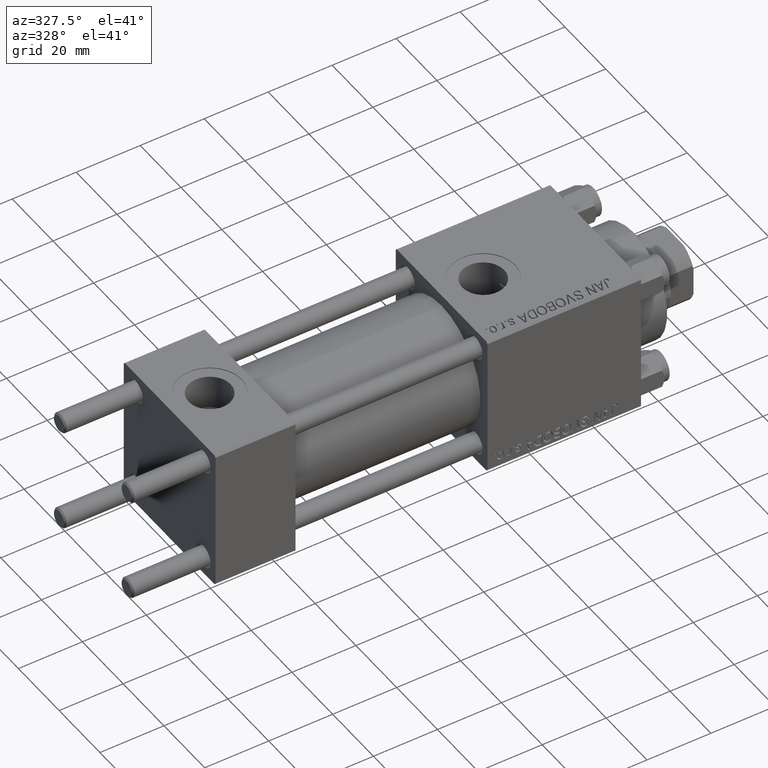
[diagram: clean part render]
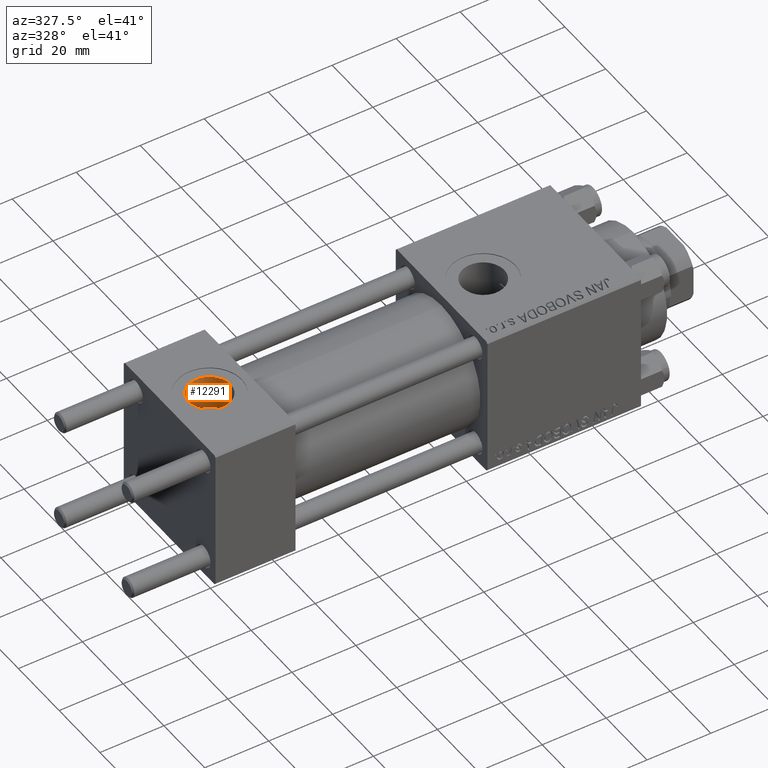
[diagram: same view with one face highlighted and labeled with its STEP entity id]
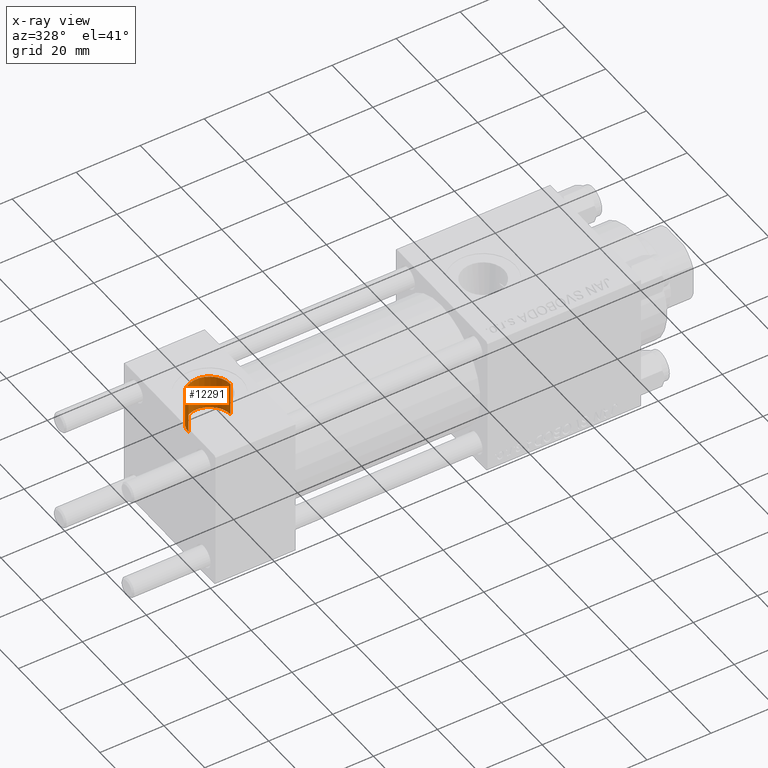
[diagram: x-ray of the same camera — body ghosted, the highlighted face saturated]
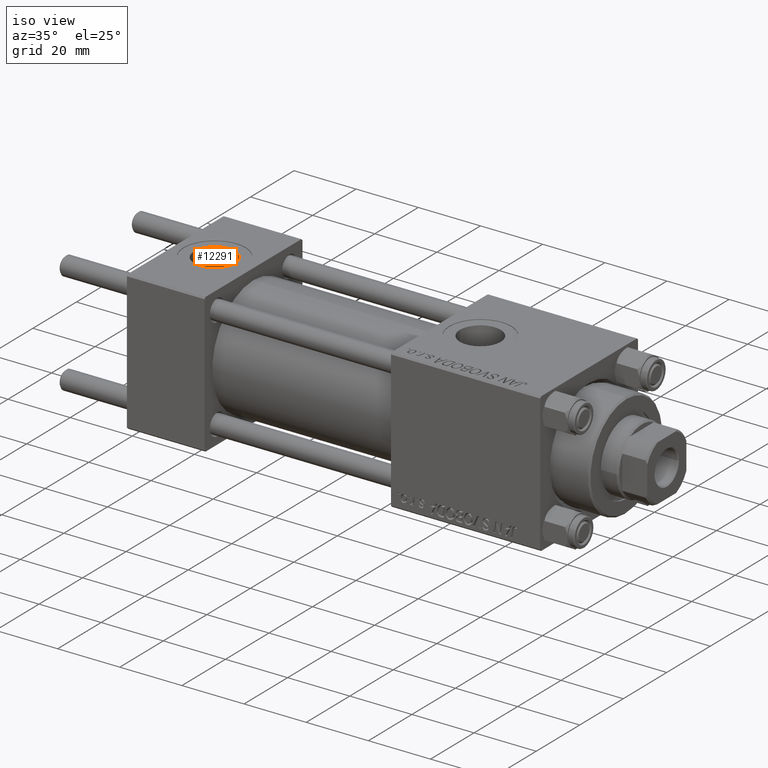
[diagram: same view with one face highlighted and labeled with its STEP entity id]
A machine part, auxiliary view. The second image highlights one B-rep face of the part: STEP entity #12291.
The next image is the same camera in x-ray: the body ghosted, the highlighted face saturated — about 0% of this face is hidden behind the body in this view.
A second angle (iso view) of the same face is appended — the face is thin or edge-on in the first view.
In plain terms, the highlighted cylindrical surface (edge-blend (fillet) strip) has radius 6.58 mm, axis along (0, 0, 1).
Its self-contained STEP definition (entity closure, byte-faithful):
#419 = LINE ( 'NONE', #15544, #33081 ) ;
#1690 = AXIS2_PLACEMENT_3D ( 'NONE', #33858, #49278, #30068 ) ;
#3498 = DIRECTION ( 'NONE',  ( 1.000000000000000000, 0.000000000000000000, 0.000000000000000000 ) ) ;
#5809 = CYLINDRICAL_SURFACE ( 'NONE', #16066, 6.579999999999999183 ) ;
#6995 = DIRECTION ( 'NONE',  ( -0.000000000000000000, -0.000000000000000000, 1.000000000000000000 ) ) ;
#8370 = EDGE_CURVE ( 'NONE', #28342, #35337, #16716, .T. ) ;
#8472 = ORIENTED_EDGE ( 'NONE', *, *, #22422, .T. ) ;
#10282 = LINE ( 'NONE', #26127, #48581 ) ;
#10394 = ORIENTED_EDGE ( 'NONE', *, *, #8370, .T. ) ;
#10612 = CARTESIAN_POINT ( 'NONE',  ( 19.07999999999999829, -1.734723475976807094E-15, 11.66598726114649409 ) ) ;
#12291 = ADVANCED_FACE ( 'NONE', ( #48433 ), #5809, .F. ) ;
#15544 = CARTESIAN_POINT ( 'NONE',  ( 5.920000000000002593, -9.289058821378490386E-16, 11.69999999999999929 ) ) ;
#16066 = AXIS2_PLACEMENT_3D ( 'NONE', #21177, #36577, #33025 ) ;
#16716 = CIRCLE ( 'NONE', #36051, 6.579999999999999183 ) ;
#17188 = EDGE_CURVE ( 'NONE', #41045, #35337, #419, .T. ) ;
#19129 = DIRECTION ( 'NONE',  ( 0.000000000000000000, 0.000000000000000000, 1.000000000000000000 ) ) ;
#19413 = CIRCLE ( 'NONE', #1690, 6.579999999999999183 ) ;
#19794 = CARTESIAN_POINT ( 'NONE',  ( 19.07999999999999829, -1.734723475976807094E-15, 22.30000000000000071 ) ) ;
#21177 = CARTESIAN_POINT ( 'NONE',  ( 12.50000000000000000, -1.734723475976807094E-15, 11.69999999999999929 ) ) ;
#22031 = ORIENTED_EDGE ( 'NONE', *, *, #45581, .T. ) ;
#22422 = EDGE_CURVE ( 'NONE', #32443, #28342, #10282, .T. ) ;
#22639 = CARTESIAN_POINT ( 'NONE',  ( 12.50000000000000000, -1.734723475976807094E-15, 22.30000000000000071 ) ) ;
#26127 = CARTESIAN_POINT ( 'NONE',  ( 19.07999999999999829, -1.734723475976807094E-15, 11.69999999999999929 ) ) ;
#26347 = DIRECTION ( 'NONE',  ( -0.000000000000000000, -0.000000000000000000, 1.000000000000000000 ) ) ;
#26673 = ORIENTED_EDGE ( 'NONE', *, *, #17188, .F. ) ;
#28342 = VERTEX_POINT ( 'NONE', #19794 ) ;
#30068 = DIRECTION ( 'NONE',  ( 1.000000000000000000, 0.000000000000000000, 0.000000000000000000 ) ) ;
#32443 = VERTEX_POINT ( 'NONE', #10612 ) ;
#33025 = DIRECTION ( 'NONE',  ( 1.000000000000000000, 0.000000000000000000, 0.000000000000000000 ) ) ;
#33081 = VECTOR ( 'NONE', #26347, 1000.000000000000000 ) ;
#33779 = EDGE_LOOP ( 'NONE', ( #26673, #22031, #8472, #10394 ) ) ;
#33858 = CARTESIAN_POINT ( 'NONE',  ( 12.50000000000000000, -1.734723475976807094E-15, 11.66598726114649409 ) ) ;
#35337 = VERTEX_POINT ( 'NONE', #45355 ) ;
#36051 = AXIS2_PLACEMENT_3D ( 'NONE', #22639, #19129, #3498 ) ;
#36577 = DIRECTION ( 'NONE',  ( -0.000000000000000000, -0.000000000000000000, 1.000000000000000000 ) ) ;
#41045 = VERTEX_POINT ( 'NONE', #42144 ) ;
#42144 = CARTESIAN_POINT ( 'NONE',  ( 5.920000000000002593, -9.289058821378490386E-16, 11.66598726114649409 ) ) ;
#45355 = CARTESIAN_POINT ( 'NONE',  ( 5.920000000000002593, -9.289058821378490386E-16, 22.30000000000000071 ) ) ;
#45581 = EDGE_CURVE ( 'NONE', #41045, #32443, #19413, .T. ) ;
#48433 = FACE_OUTER_BOUND ( 'NONE', #33779, .T. ) ;
#48581 = VECTOR ( 'NONE', #6995, 1000.000000000000000 ) ;
#49278 = DIRECTION ( 'NONE',  ( -0.000000000000000000, -0.000000000000000000, -1.000000000000000000 ) ) ;